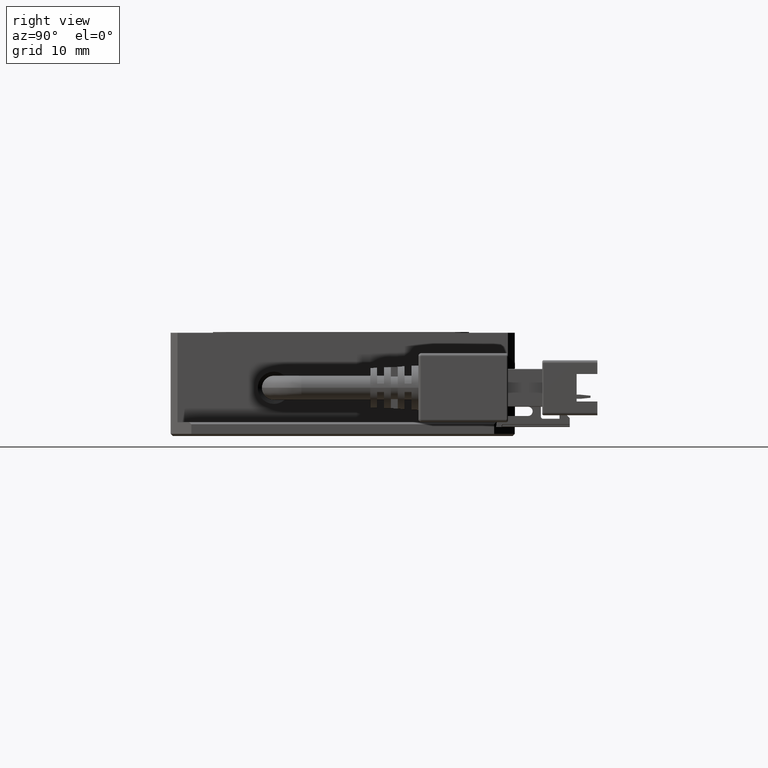
[diagram: clean part render]
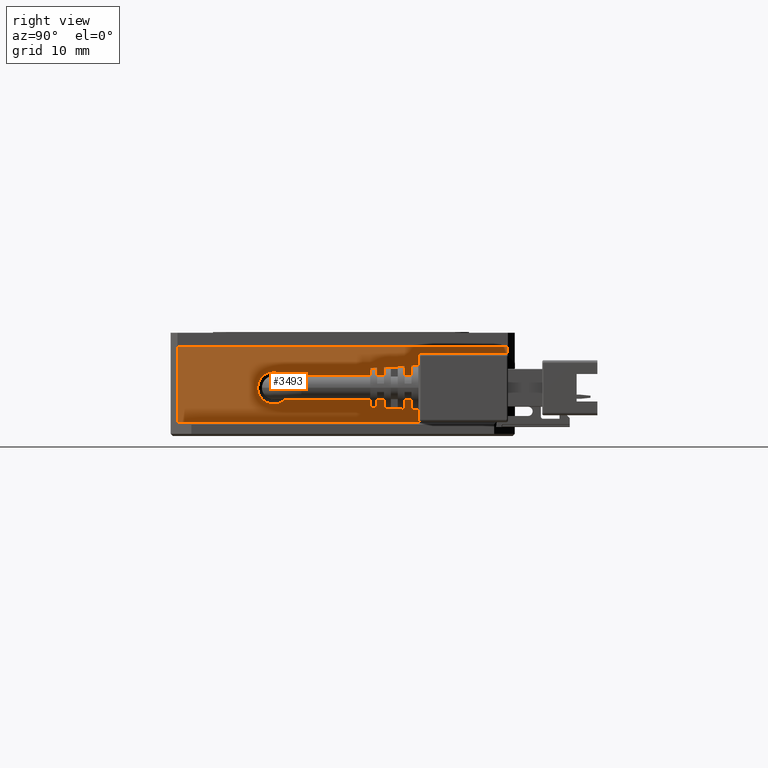
[diagram: same view with one face highlighted and labeled with its STEP entity id]
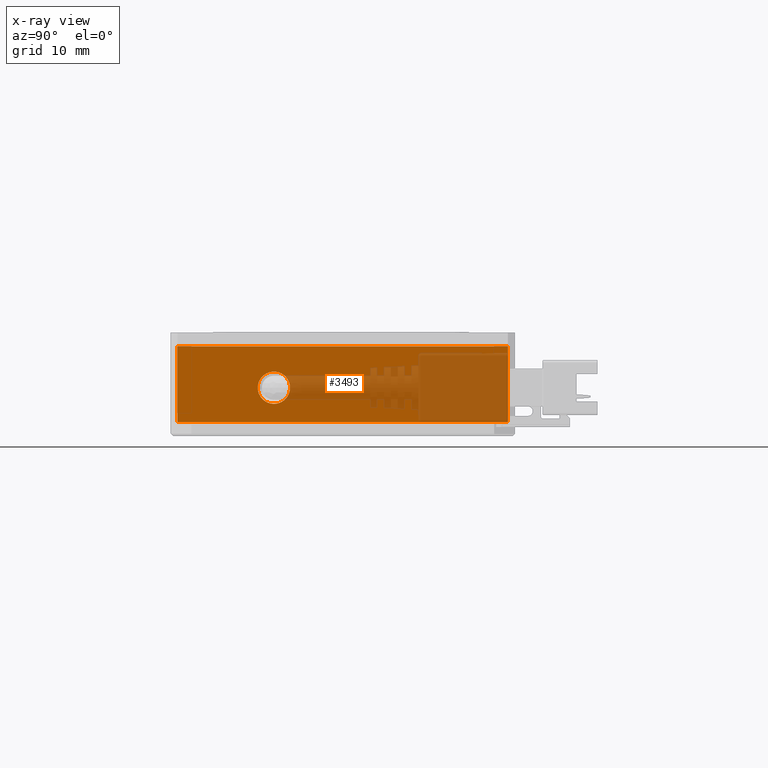
[diagram: x-ray of the same camera — body ghosted, the highlighted face saturated]
A machine part, right view. The second image highlights one B-rep face of the part: STEP entity #3493.
The next image is the same camera in x-ray: the body ghosted, the highlighted face saturated — about 41% of this face is hidden behind the body in this view.
In plain terms, the highlighted planar face has unit normal (-1, 0, 0).
Its self-contained STEP definition (entity closure, byte-faithful):
#77 = LINE ( 'NONE', #6140, #4344 ) ;
#203 = VERTEX_POINT ( 'NONE', #13907 ) ;
#776 = CARTESIAN_POINT ( 'NONE',  ( 23.09316533022370900, -7.709049255440970000, 4.999999999983692200 ) ) ;
#867 = CARTESIAN_POINT ( 'NONE',  ( 23.09316533027873300, 26.29095074455902600, 10.99999999998369100 ) ) ;
#901 = EDGE_CURVE ( 'NONE', #2476, #3676, #77, .T. ) ;
#1234 = EDGE_CURVE ( 'NONE', #2881, #2476, #16391, .T. ) ;
#1350 = AXIS2_PLACEMENT_3D ( 'NONE', #776, #11896, #2377 ) ;
#2377 = DIRECTION ( 'NONE',  ( 0.0000000000000000000, 0.0000000000000000000, -1.000000000000000000 ) ) ;
#2476 = VERTEX_POINT ( 'NONE', #6436 ) ;
#2769 = VERTEX_POINT ( 'NONE', #867 ) ;
#2881 = VERTEX_POINT ( 'NONE', #12451 ) ;
#3032 = DIRECTION ( 'NONE',  ( 0.0000000000000000000, 0.0000000000000000000, 1.000000000000000000 ) ) ;
#3108 = ORIENTED_EDGE ( 'NONE', *, *, #13256, .F. ) ;
#3375 = LINE ( 'NONE', #7616, #11320 ) ;
#3463 = DIRECTION ( 'NONE',  ( 1.000000000000000000, 0.0000000000000000000, 0.0000000000000000000 ) ) ;
#3493 = ADVANCED_FACE ( 'NONE', ( #13044, #16718 ), #19805, .F. ) ;
#3676 = VERTEX_POINT ( 'NONE', #11360 ) ;
#4344 = VECTOR ( 'NONE', #3032, 1000.000000000000000 ) ;
#4927 = ORIENTED_EDGE ( 'NONE', *, *, #9177, .F. ) ;
#5729 = CARTESIAN_POINT ( 'NONE',  ( 23.09316533027873300, -22.70904925544097000, 10.99999999998369100 ) ) ;
#6140 = CARTESIAN_POINT ( 'NONE',  ( 23.09316533027873300, -21.70904925544096600, 10.99999999998369100 ) ) ;
#6198 = VECTOR ( 'NONE', #6616, 1000.000000000000000 ) ;
#6436 = CARTESIAN_POINT ( 'NONE',  ( 23.09316533027873300, -21.70904925544096300, -1.630878591896145500E-011 ) ) ;
#6480 = ORIENTED_EDGE ( 'NONE', *, *, #901, .F. ) ;
#6616 = DIRECTION ( 'NONE',  ( -0.0000000000000000000, -0.0000000000000000000, -1.000000000000000000 ) ) ;
#6673 = EDGE_LOOP ( 'NONE', ( #4927, #6955 ) ) ;
#6955 = ORIENTED_EDGE ( 'NONE', *, *, #8156, .F. ) ;
#7291 = CARTESIAN_POINT ( 'NONE',  ( 23.09316533022370900, -7.709049255440970000, 7.350000000023619000 ) ) ;
#7314 = DIRECTION ( 'NONE',  ( 0.0000000000000000000, 0.0000000000000000000, 1.000000000000000000 ) ) ;
#7616 = CARTESIAN_POINT ( 'NONE',  ( 23.09316533027873300, 27.29095074455903400, 10.99999999998369100 ) ) ;
#8156 = EDGE_CURVE ( 'NONE', #13486, #203, #18725, .T. ) ;
#9122 = AXIS2_PLACEMENT_3D ( 'NONE', #12951, #3463, #14545 ) ;
#9177 = EDGE_CURVE ( 'NONE', #203, #13486, #9992, .T. ) ;
#9637 = CARTESIAN_POINT ( 'NONE',  ( 23.09316533027873300, 26.29095074455901900, 10.99999999998369100 ) ) ;
#9992 = CIRCLE ( 'NONE', #1350, 2.350000000039926800 ) ;
#10570 = ORIENTED_EDGE ( 'NONE', *, *, #13810, .T. ) ;
#11320 = VECTOR ( 'NONE', #12355, 1000.000000000000000 ) ;
#11360 = CARTESIAN_POINT ( 'NONE',  ( 23.09316533027873300, -21.70904925544096600, 10.99999999998369100 ) ) ;
#11896 = DIRECTION ( 'NONE',  ( 1.000000000000000000, 0.0000000000000000000, 0.0000000000000000000 ) ) ;
#12218 = VECTOR ( 'NONE', #13634, 1000.000000000000000 ) ;
#12355 = DIRECTION ( 'NONE',  ( -0.0000000000000000000, -1.000000000000000000, -0.0000000000000000000 ) ) ;
#12441 = AXIS2_PLACEMENT_3D ( 'NONE', #5729, #16732, #7314 ) ;
#12451 = CARTESIAN_POINT ( 'NONE',  ( 23.09316533027873300, 26.29095074455903400, -1.631073748287192900E-011 ) ) ;
#12951 = CARTESIAN_POINT ( 'NONE',  ( 23.09316533022370900, -7.709049255440970000, 4.999999999983692200 ) ) ;
#13044 = FACE_OUTER_BOUND ( 'NONE', #17582, .T. ) ;
#13256 = EDGE_CURVE ( 'NONE', #2769, #2881, #14569, .T. ) ;
#13486 = VERTEX_POINT ( 'NONE', #7291 ) ;
#13634 = DIRECTION ( 'NONE',  ( -0.0000000000000000000, -1.000000000000000000, 0.0000000000000000000 ) ) ;
#13810 = EDGE_CURVE ( 'NONE', #2769, #3676, #3375, .T. ) ;
#13907 = CARTESIAN_POINT ( 'NONE',  ( 23.09316533022370900, -7.709049255440970000, 2.649999999943764900 ) ) ;
#14545 = DIRECTION ( 'NONE',  ( 0.0000000000000000000, 0.0000000000000000000, -1.000000000000000000 ) ) ;
#14569 = LINE ( 'NONE', #9637, #6198 ) ;
#15423 = CARTESIAN_POINT ( 'NONE',  ( 23.09316533027873300, -22.70904925544097000, -1.630813539765796300E-011 ) ) ;
#15560 = ORIENTED_EDGE ( 'NONE', *, *, #1234, .F. ) ;
#16391 = LINE ( 'NONE', #15423, #12218 ) ;
#16718 = FACE_BOUND ( 'NONE', #6673, .T. ) ;
#16732 = DIRECTION ( 'NONE',  ( -1.000000000000000000, 0.0000000000000000000, 0.0000000000000000000 ) ) ;
#17582 = EDGE_LOOP ( 'NONE', ( #6480, #15560, #3108, #10570 ) ) ;
#18725 = CIRCLE ( 'NONE', #9122, 2.350000000039926800 ) ;
#19805 = PLANE ( 'NONE',  #12441 ) ;